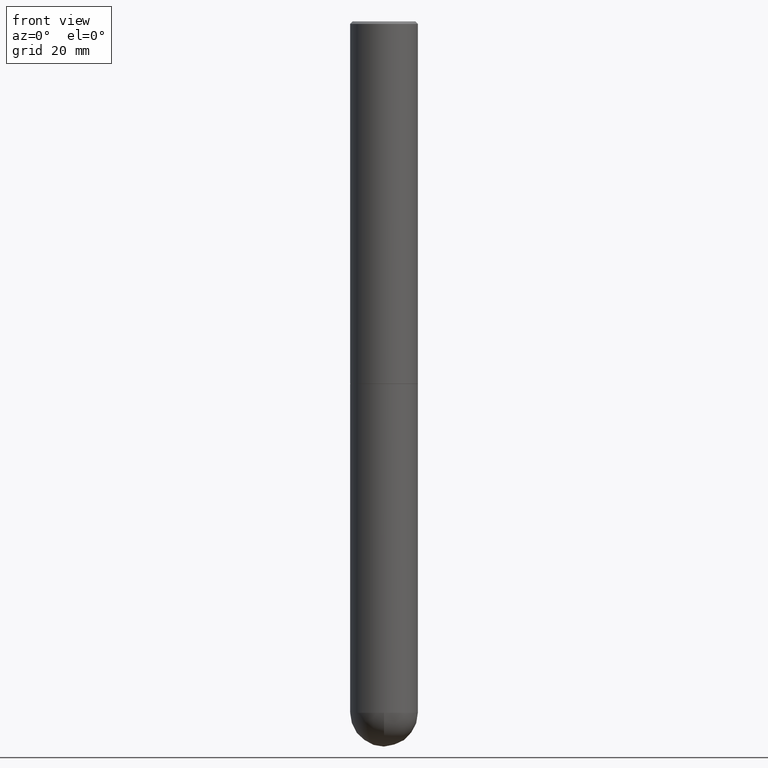
[diagram: clean part render]
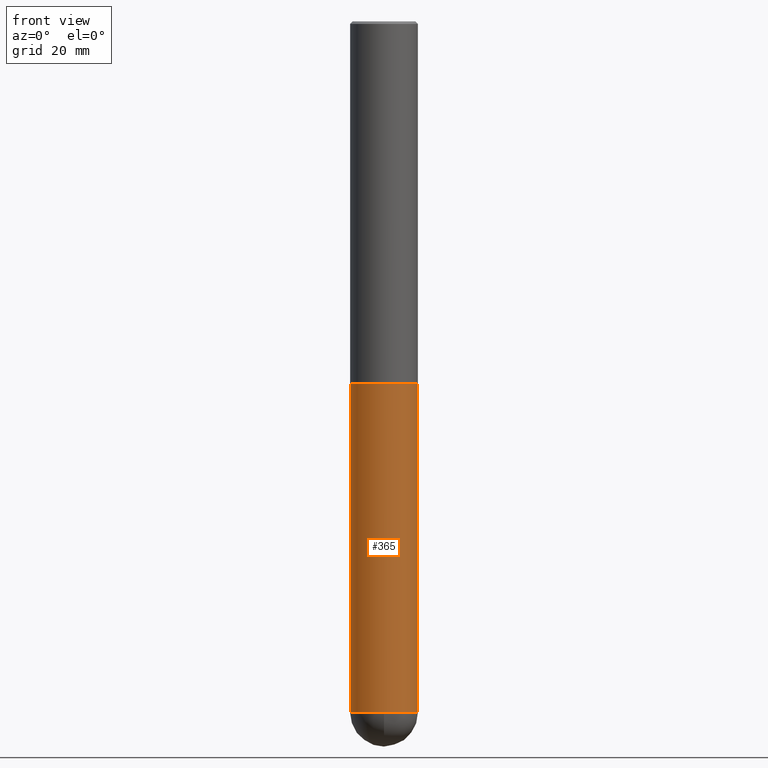
[diagram: same view with one face highlighted and labeled with its STEP entity id]
A machine part, front view. The second image highlights one B-rep face of the part: STEP entity #365.
In plain terms, the highlighted cylindrical surface (edge-blend (fillet) strip) has radius 7.0002 mm, axis along (-0, 0, 1).
Its self-contained STEP definition (entity closure, byte-faithful):
#8 = CARTESIAN_POINT ( 'NONE',  ( -0.2756000000000000116, -1.302473808962275237E-14, -2.952700000000000102 ) ) ;
#25 = CIRCLE ( 'NONE', #323, 0.2756000000000000671 ) ;
#35 = EDGE_CURVE ( 'NONE', #379, #316, #58, .T. ) ;
#52 = VECTOR ( 'NONE', #217, 39.37007874015748143 ) ;
#56 = EDGE_CURVE ( 'NONE', #233, #336, #153, .T. ) ;
#58 = CIRCLE ( 'NONE', #229, 0.2756000000000000671 ) ;
#69 = AXIS2_PLACEMENT_3D ( 'NONE', #114, #291, #267 ) ;
#74 = EDGE_LOOP ( 'NONE', ( #399, #389, #254, #256, #272 ) ) ;
#111 = DIRECTION ( 'NONE',  ( 1.000000000000000000, -6.982962677686264344E-15, 0.000000000000000000 ) ) ;
#114 = CARTESIAN_POINT ( 'NONE',  ( 0.000000000000000000, 0.000000000000000000, 0.000000000000000000 ) ) ;
#120 = DIRECTION ( 'NONE',  ( 1.000000000000000000, -6.982962677686264344E-15, 0.000000000000000000 ) ) ;
#122 = DIRECTION ( 'NONE',  ( -2.445468806185136597E-29, 3.491481338843145583E-15, 1.000000000000000000 ) ) ;
#132 = DIRECTION ( 'NONE',  ( -2.445468806185136597E-29, 3.491481338843145583E-15, 1.000000000000000000 ) ) ;
#143 = CIRCLE ( 'NONE', #345, 0.2756000000000000116 ) ;
#153 = LINE ( 'NONE', #410, #52 ) ;
#159 = LINE ( 'NONE', #279, #211 ) ;
#161 = EDGE_CURVE ( 'NONE', #261, #336, #143, .T. ) ;
#173 = FACE_OUTER_BOUND ( 'NONE', #74, .T. ) ;
#194 = CARTESIAN_POINT ( 'NONE',  ( -1.958255779754700116E-15, -0.2756000000000199956, -5.629899999999999238 ) ) ;
#203 = CYLINDRICAL_SURFACE ( 'NONE', #69, 0.2756000000000000671 ) ;
#211 = VECTOR ( 'NONE', #412, 39.37007874015748143 ) ;
#217 = DIRECTION ( 'NONE',  ( -2.445468806185136877E-29, 3.491481338843145188E-15, 1.000000000000000000 ) ) ;
#222 = CARTESIAN_POINT ( 'NONE',  ( 0.2756000000000000116, -1.223380146317248997E-14, -2.952700000000000102 ) ) ;
#229 = AXIS2_PLACEMENT_3D ( 'NONE', #304, #122, #120 ) ;
#232 = DIRECTION ( 'NONE',  ( 1.000000000000000000, -6.982962677686265922E-15, 0.000000000000000000 ) ) ;
#233 = VERTEX_POINT ( 'NONE', #271 ) ;
#238 = DIRECTION ( 'NONE',  ( -2.445468806185136597E-29, 3.491481338843145583E-15, 1.000000000000000000 ) ) ;
#251 = CARTESIAN_POINT ( 'NONE',  ( -0.2756000000000000671, -1.302473808962275553E-14, -5.629900000000000126 ) ) ;
#254 = ORIENTED_EDGE ( 'NONE', *, *, #280, .T. ) ;
#256 = ORIENTED_EDGE ( 'NONE', *, *, #56, .T. ) ;
#261 = VERTEX_POINT ( 'NONE', #8 ) ;
#267 = DIRECTION ( 'NONE',  ( 1.000000000000000000, -6.982962677686267499E-15, 4.876176775795935793E-29 ) ) ;
#271 = CARTESIAN_POINT ( 'NONE',  ( 0.2756000000000000671, -1.690749838334792865E-14, -5.629900000000000126 ) ) ;
#272 = ORIENTED_EDGE ( 'NONE', *, *, #161, .F. ) ;
#279 = CARTESIAN_POINT ( 'NONE',  ( -0.2756000000000000671, 1.958255779754836589E-15, -1.355658510874252287E-29 ) ) ;
#280 = EDGE_CURVE ( 'NONE', #316, #233, #25, .T. ) ;
#291 = DIRECTION ( 'NONE',  ( -2.445468806185136597E-29, 3.491481338843145583E-15, 1.000000000000000000 ) ) ;
#304 = CARTESIAN_POINT ( 'NONE',  ( 1.376774483194169922E-28, -1.965669078955302449E-14, -5.629900000000000126 ) ) ;
#316 = VERTEX_POINT ( 'NONE', #194 ) ;
#323 = AXIS2_PLACEMENT_3D ( 'NONE', #382, #132, #111 ) ;
#327 = CARTESIAN_POINT ( 'NONE',  ( 7.220735744022852519E-29, -1.030929694920215502E-14, -2.952700000000000102 ) ) ;
#336 = VERTEX_POINT ( 'NONE', #222 ) ;
#345 = AXIS2_PLACEMENT_3D ( 'NONE', #327, #238, #232 ) ;
#365 = ADVANCED_FACE ( 'NONE', ( #173 ), #203, .T. ) ;
#379 = VERTEX_POINT ( 'NONE', #251 ) ;
#382 = CARTESIAN_POINT ( 'NONE',  ( 1.376774483194169922E-28, -1.965669078955302449E-14, -5.629900000000000126 ) ) ;
#389 = ORIENTED_EDGE ( 'NONE', *, *, #35, .T. ) ;
#399 = ORIENTED_EDGE ( 'NONE', *, *, #409, .F. ) ;
#409 = EDGE_CURVE ( 'NONE', #379, #261, #159, .T. ) ;
#410 = CARTESIAN_POINT ( 'NONE',  ( 0.2756000000000000671, -1.924504513970335743E-15, 1.343874319409360268E-29 ) ) ;
#412 = DIRECTION ( 'NONE',  ( -2.445468806185136877E-29, 3.491481338843145188E-15, 1.000000000000000000 ) ) ;